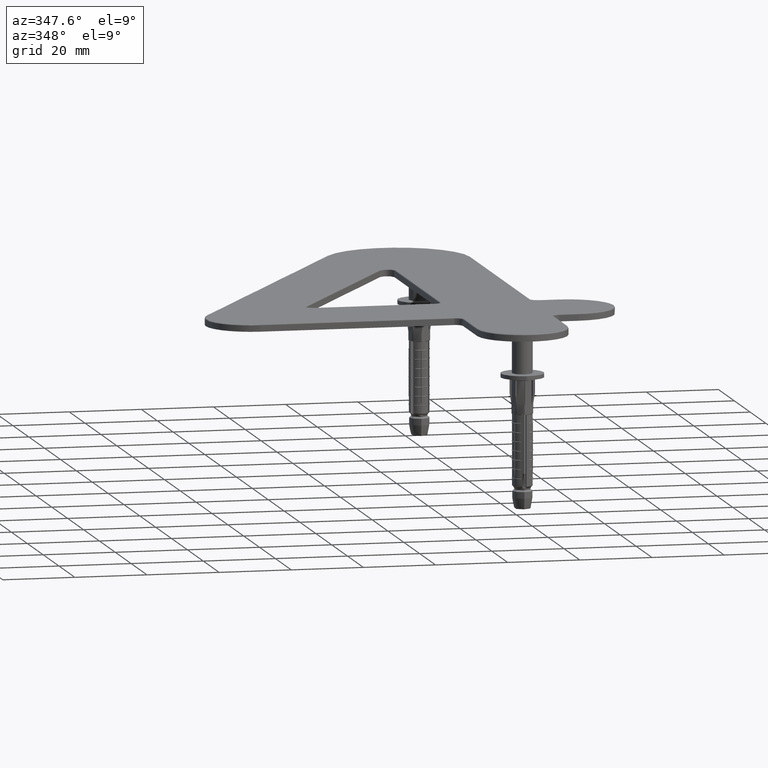
[diagram: clean part render]
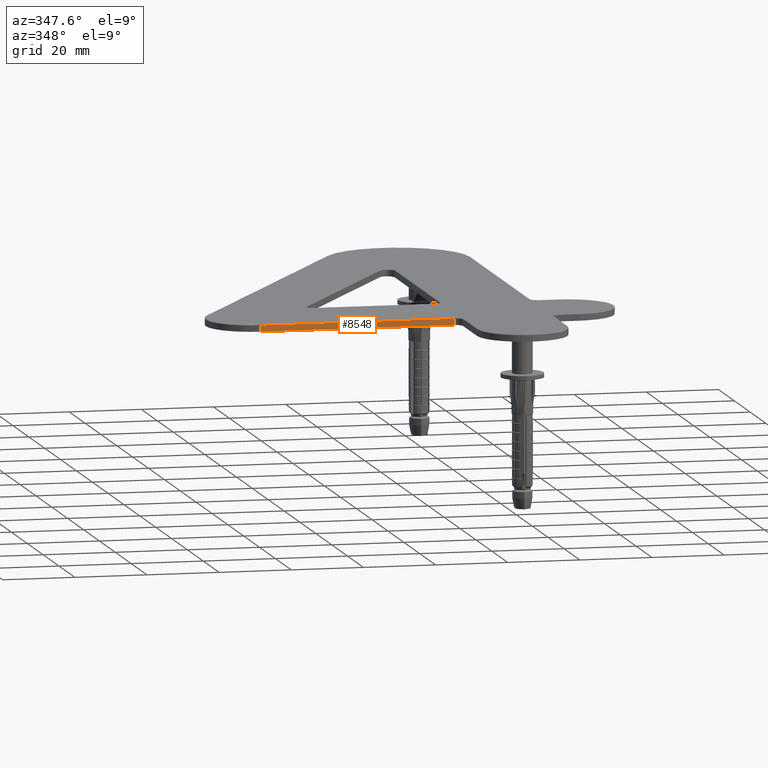
[diagram: same view with one face highlighted and labeled with its STEP entity id]
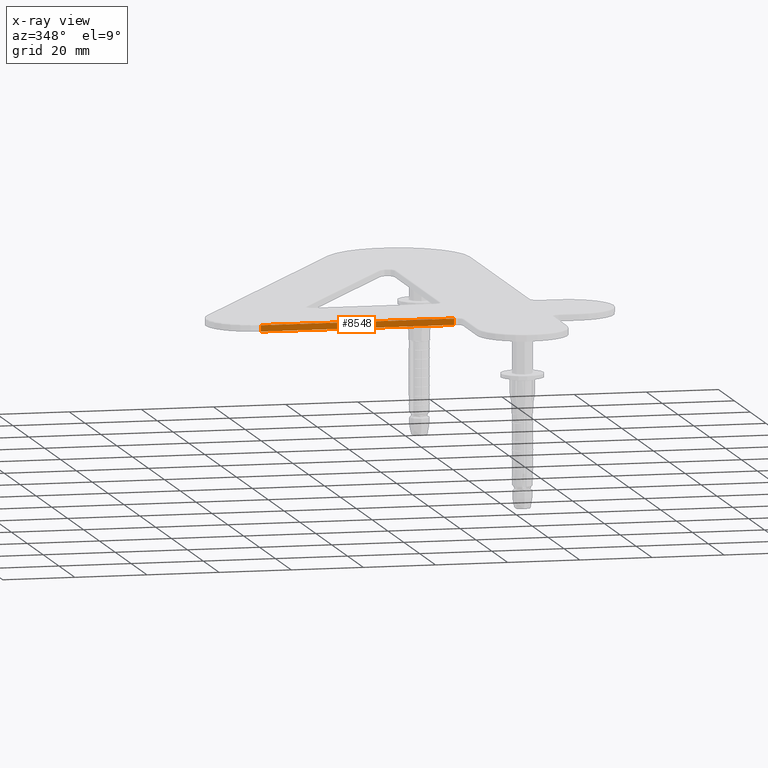
[diagram: x-ray of the same camera — body ghosted, the highlighted face saturated]
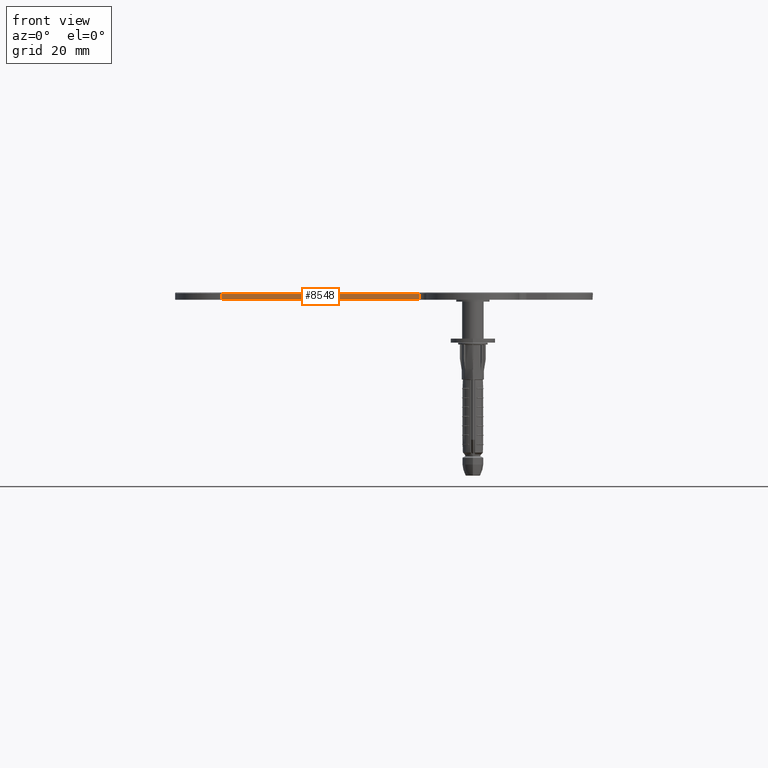
[diagram: same view with one face highlighted and labeled with its STEP entity id]
A machine part, auxiliary view. The second image highlights one B-rep face of the part: STEP entity #8548.
The next image is the same camera in x-ray: the body ghosted, the highlighted face saturated — about 0% of this face is hidden behind the body in this view.
A second angle (front view) of the same face is appended — the face is thin or edge-on in the first view.
In plain terms, the highlighted planar face has unit normal (-0, 1, 0).
Its self-contained STEP definition (entity closure, byte-faithful):
#1298 = DIRECTION ( 'NONE',  ( -0.000000000000000000, -0.000000000000000000, -1.000000000000000000 ) ) ;
#2339 = ORIENTED_EDGE ( 'NONE', *, *, #28712, .T. ) ;
#3552 = CARTESIAN_POINT ( 'NONE',  ( -68.12177826491084431, 32.49999999999999289, 2.000000000000000000 ) ) ;
#4719 = CARTESIAN_POINT ( 'NONE',  ( -68.12177826491084431, 32.49999999999999289, 2.000000000000000000 ) ) ;
#6913 = LINE ( 'NONE', #34701, #28189 ) ;
#6989 = DIRECTION ( 'NONE',  ( -2.588087948007469279E-16, 1.000000000000000000, 0.000000000000000000 ) ) ;
#7343 = EDGE_LOOP ( 'NONE', ( #21314, #13215, #2339, #16520 ) ) ;
#8263 = FACE_OUTER_BOUND ( 'NONE', #7343, .T. ) ;
#8548 = ADVANCED_FACE ( 'NONE', ( #8263 ), #9421, .F. ) ;
#8581 = AXIS2_PLACEMENT_3D ( 'NONE', #3552, #6989, #19072 ) ;
#8628 = VECTOR ( 'NONE', #12636, 1000.000000000000000 ) ;
#9421 = PLANE ( 'NONE',  #8581 ) ;
#9825 = CARTESIAN_POINT ( 'NONE',  ( -68.12177826491084431, 32.49999999999999289, 1.750000000000000000 ) ) ;
#9883 = CARTESIAN_POINT ( 'NONE',  ( -68.12177826491084431, 32.49999999999999289, 0.000000000000000000 ) ) ;
#11139 = EDGE_CURVE ( 'NONE', #12058, #11767, #35612, .T. ) ;
#11767 = VERTEX_POINT ( 'NONE', #27147 ) ;
#12058 = VERTEX_POINT ( 'NONE', #19988 ) ;
#12636 = DIRECTION ( 'NONE',  ( -1.000000000000000000, -2.588087948007469279E-16, -0.000000000000000000 ) ) ;
#13215 = ORIENTED_EDGE ( 'NONE', *, *, #11139, .T. ) ;
#16520 = ORIENTED_EDGE ( 'NONE', *, *, #27020, .T. ) ;
#19072 = DIRECTION ( 'NONE',  ( -1.000000000000000000, -2.588087948007469279E-16, 0.000000000000000000 ) ) ;
#19988 = CARTESIAN_POINT ( 'NONE',  ( -14.50000000000002132, 32.50000000000000711, 1.750000000000000000 ) ) ;
#20622 = CARTESIAN_POINT ( 'NONE',  ( -68.12177826491084431, 32.49999999999999289, 0.000000000000000000 ) ) ;
#20662 = VECTOR ( 'NONE', #31041, 1000.000000000000000 ) ;
#21314 = ORIENTED_EDGE ( 'NONE', *, *, #21567, .F. ) ;
#21567 = EDGE_CURVE ( 'NONE', #12058, #29811, #6913, .T. ) ;
#24310 = CARTESIAN_POINT ( 'NONE',  ( -14.50000000000002132, 32.50000000000000711, 0.000000000000000000 ) ) ;
#27020 = EDGE_CURVE ( 'NONE', #32202, #29811, #30564, .T. ) ;
#27147 = CARTESIAN_POINT ( 'NONE',  ( -68.12177826491084431, 32.49999999999999289, 1.750000000000000000 ) ) ;
#27678 = VECTOR ( 'NONE', #1298, 1000.000000000000000 ) ;
#28189 = VECTOR ( 'NONE', #34836, 1000.000000000000000 ) ;
#28712 = EDGE_CURVE ( 'NONE', #11767, #32202, #34793, .T. ) ;
#29811 = VERTEX_POINT ( 'NONE', #24310 ) ;
#30564 = LINE ( 'NONE', #9883, #20662 ) ;
#31041 = DIRECTION ( 'NONE',  ( 1.000000000000000000, 2.588087948007468786E-16, 0.000000000000000000 ) ) ;
#32202 = VERTEX_POINT ( 'NONE', #20622 ) ;
#34701 = CARTESIAN_POINT ( 'NONE',  ( -14.50000000000002132, 32.50000000000000711, 2.000000000000000000 ) ) ;
#34793 = LINE ( 'NONE', #4719, #27678 ) ;
#34836 = DIRECTION ( 'NONE',  ( -0.000000000000000000, -0.000000000000000000, -1.000000000000000000 ) ) ;
#35612 = LINE ( 'NONE', #9825, #8628 ) ;